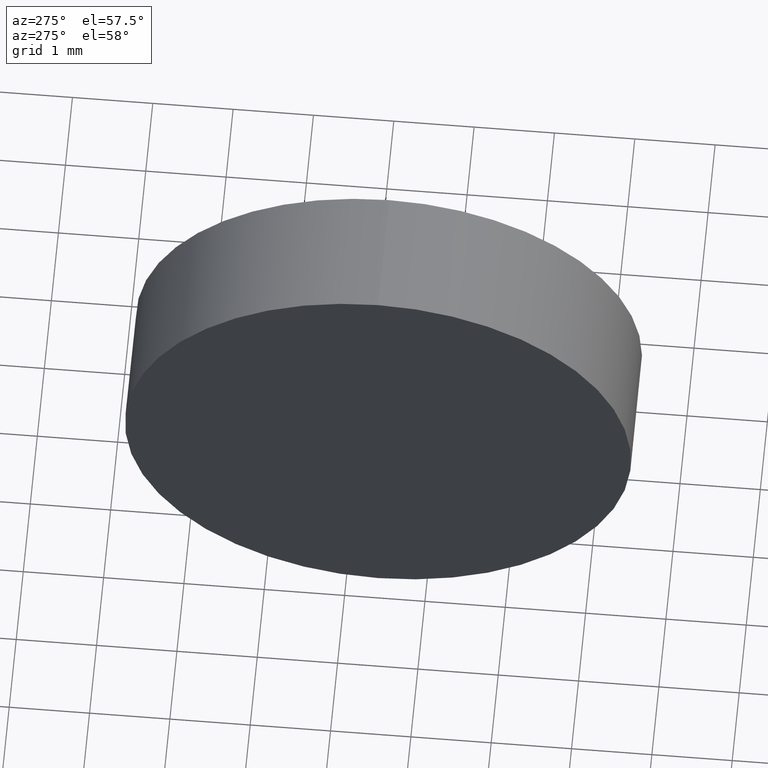
[diagram: clean part render]
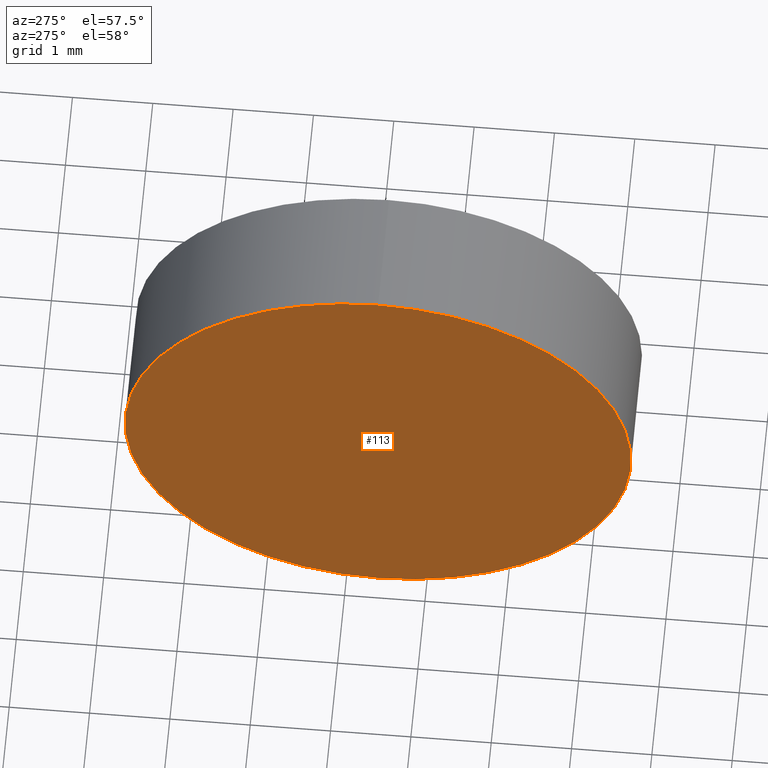
[diagram: same view with one face highlighted and labeled with its STEP entity id]
A machine part, auxiliary view. The second image highlights one B-rep face of the part: STEP entity #113.
In plain terms, the highlighted planar face has unit normal (1, 0, 0).
Its self-contained STEP definition (entity closure, byte-faithful):
#4 = CARTESIAN_POINT ( 'NONE',  ( 421.2035266146245400, 44.60173696061082200, -3.149999999999999900 ) ) ;
#10 = EDGE_CURVE ( 'NONE', #87, #16, #42, .T. ) ;
#16 = VERTEX_POINT ( 'NONE', #142 ) ;
#17 = AXIS2_PLACEMENT_3D ( 'NONE', #145, #31, #66 ) ;
#22 = CARTESIAN_POINT ( 'NONE',  ( 421.2035266146245400, 44.60173696061082200, 0.0000000000000000000 ) ) ;
#23 = AXIS2_PLACEMENT_3D ( 'NONE', #179, #47, #157 ) ;
#26 = ORIENTED_EDGE ( 'NONE', *, *, #10, .T. ) ;
#31 = DIRECTION ( 'NONE',  ( 1.000000000000000000, 0.0000000000000000000, 0.0000000000000000000 ) ) ;
#42 = CIRCLE ( 'NONE', #23, 3.149999999999999900 ) ;
#44 = ORIENTED_EDGE ( 'NONE', *, *, #159, .T. ) ;
#46 = CIRCLE ( 'NONE', #73, 3.149999999999999900 ) ;
#47 = DIRECTION ( 'NONE',  ( -1.000000000000000000, -0.0000000000000000000, -0.0000000000000000000 ) ) ;
#56 = DIRECTION ( 'NONE',  ( -1.000000000000000000, -0.0000000000000000000, -0.0000000000000000000 ) ) ;
#66 = DIRECTION ( 'NONE',  ( 0.0000000000000000000, 0.0000000000000000000, -1.000000000000000000 ) ) ;
#71 = DIRECTION ( 'NONE',  ( 0.0000000000000000000, 0.0000000000000000000, 1.000000000000000000 ) ) ;
#73 = AXIS2_PLACEMENT_3D ( 'NONE', #22, #56, #71 ) ;
#87 = VERTEX_POINT ( 'NONE', #4 ) ;
#100 = PLANE ( 'NONE',  #17 ) ;
#113 = ADVANCED_FACE ( 'NONE', ( #131 ), #100, .F. ) ;
#131 = FACE_OUTER_BOUND ( 'NONE', #132, .T. ) ;
#132 = EDGE_LOOP ( 'NONE', ( #44, #26 ) ) ;
#142 = CARTESIAN_POINT ( 'NONE',  ( 421.2035266146245400, 44.60173696061082200, 3.149999999999999900 ) ) ;
#145 = CARTESIAN_POINT ( 'NONE',  ( 421.2035266146245400, 44.60173696061082200, 0.0000000000000000000 ) ) ;
#157 = DIRECTION ( 'NONE',  ( 0.0000000000000000000, 0.0000000000000000000, 1.000000000000000000 ) ) ;
#159 = EDGE_CURVE ( 'NONE', #16, #87, #46, .T. ) ;
#179 = CARTESIAN_POINT ( 'NONE',  ( 421.2035266146245400, 44.60173696061082200, 0.0000000000000000000 ) ) ;